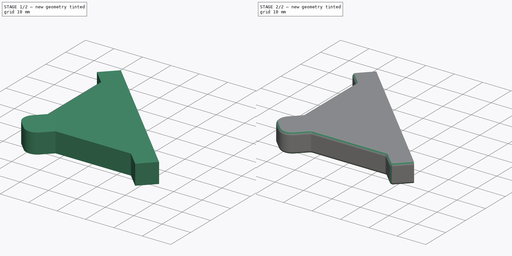
[diagram: build sequence overview — one tinted view per stage of 2, left to right]
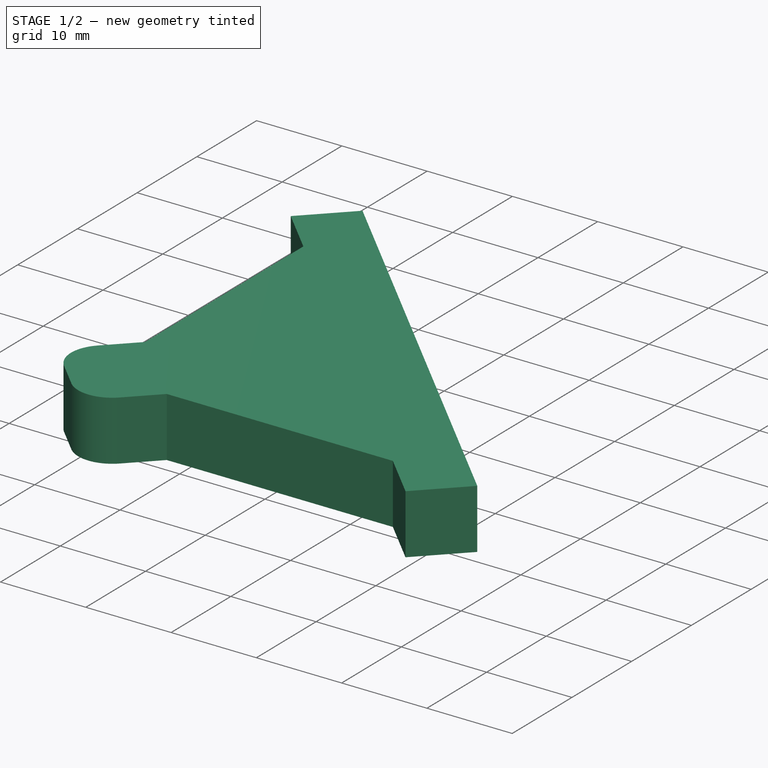
[diagram: stage 1 of 2 — iso view after this stage's code; geometry added in this stage tinted green]
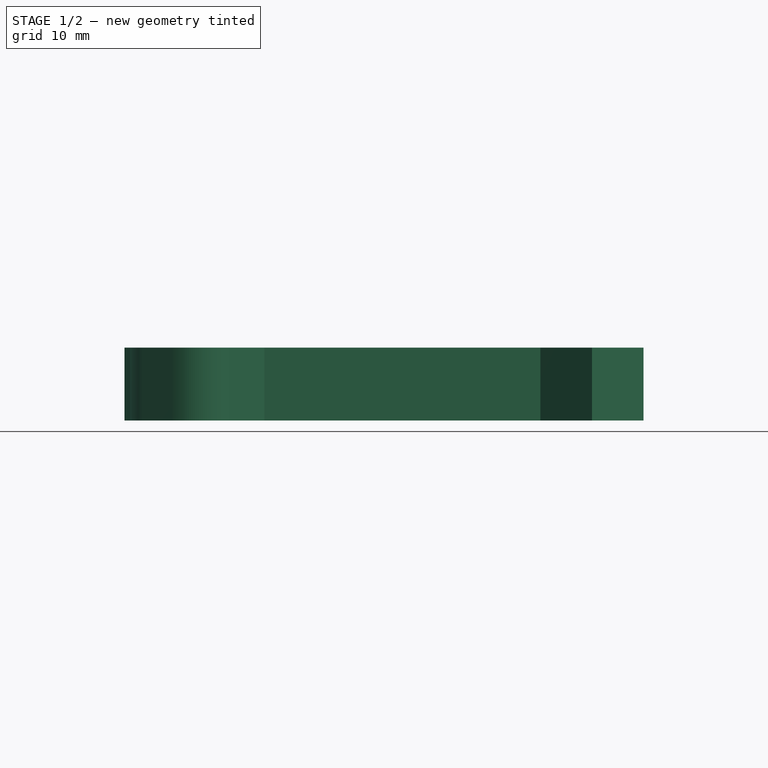
[diagram: stage 1 of 2 — front view after this stage's code; geometry added in this stage tinted green]
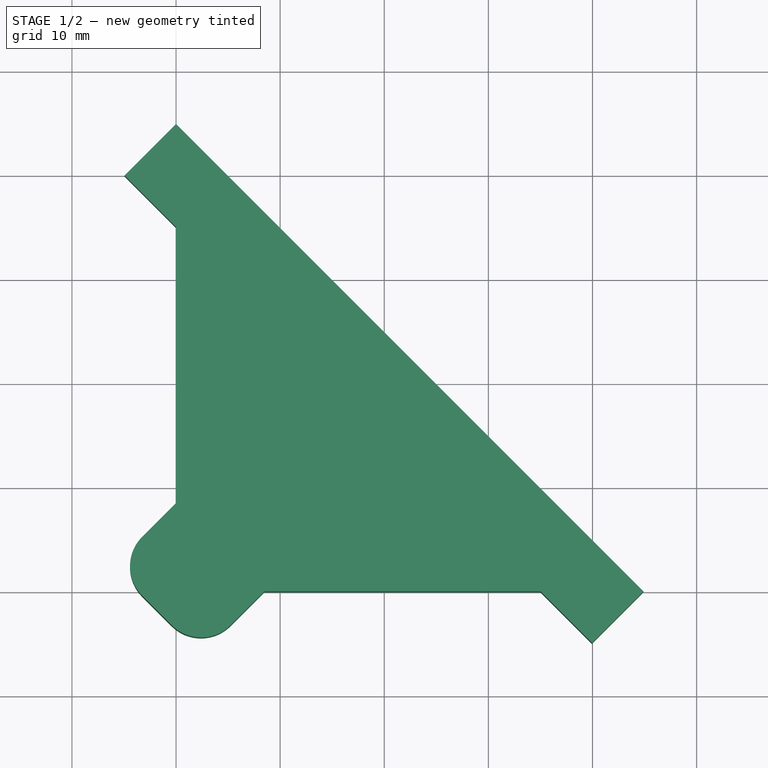
[diagram: stage 1 of 2 — top view after this stage's code; geometry added in this stage tinted green]
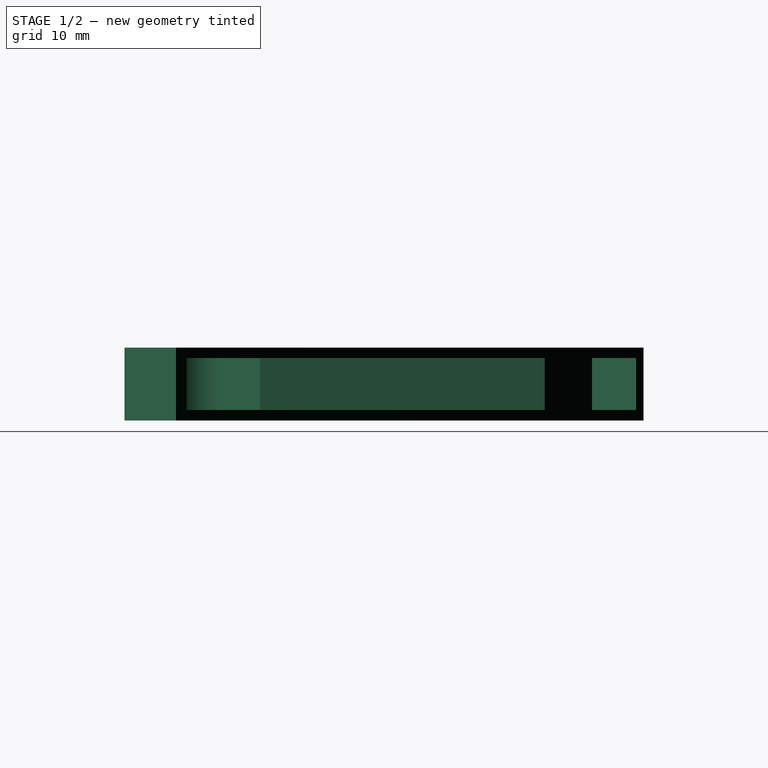
[diagram: stage 1 of 2 — right view after this stage's code; geometry added in this stage tinted green]
FCSTD DOCUMENT  (FreeCAD 0.20R29410 (Git))
Label: GlassSheetEdgeProtector
License: All rights reserved
LicenseURL: http://en.wikipedia.org/wiki/All_rights_reserved
objects: Sketcher::SketchObject×3, PartDesign::Pad×1, PartDesign::Pocket×1, PartDesign::Fillet×1, PartDesign::Body×1
note: 10 computed .brp shape members not serialized (recipe doc carries the construction recipe); baked Part::Feature solids carry a one-line shape summary decoded from their .brp

FEATURE [Sketcher::SketchObject] Sketch
  FullyConstrained = true
  MapMode = 5
  Support = -> [XY_Plane]
  sketch-geometry (17):
    g0: LineSegment StartX=8.38e-14 StartY=35 StartZ=0 EndX=35 EndY=4.26e-14 EndZ=0
    g1: LineSegment StartX=8.38e-14 StartY=35 StartZ=0 EndX=-4.94975 EndY=39.9497 EndZ=0
    g2: LineSegment StartX=35 StartY=4.26e-14 StartZ=0 EndX=39.9497 EndY=-4.94975 EndZ=0
    g3: LineSegment StartX=-4.94975 StartY=39.9497 StartZ=0 EndX=1.03046e-11 EndY=44.8995 EndZ=0
    g4: LineSegment StartX=39.9497 StartY=-4.94975 StartZ=0 EndX=44.8995 EndY=-8.6615e-12 EndZ=0
    g5: LineSegment StartX=1.03043e-11 StartY=44.8995 StartZ=0 EndX=44.8995 EndY=-8.6615e-12 EndZ=0
    g6: LineSegment StartX=8.38e-14 StartY=8.48528 StartZ=0 EndX=-3.25269 EndY=5.23259 EndZ=0
    g7: LineSegment StartX=8.48528 StartY=4.26e-14 StartZ=0 EndX=5.23259 EndY=-3.25269 EndZ=0
    g8: LineSegment StartX=8.38e-14 StartY=4.26e-14 StartZ=0 EndX=8.48528 EndY=4.26e-14 EndZ=0
    g9: LineSegment StartX=8.48528 StartY=4.26e-14 StartZ=0 EndX=35 EndY=4.26e-14 EndZ=0
    g10: LineSegment StartX=8.38e-14 StartY=4.26e-14 StartZ=0 EndX=8.38e-14 EndY=8.48528 EndZ=0
    g11: LineSegment StartX=8.38e-14 StartY=8.48528 StartZ=0 EndX=8.38e-14 EndY=35 EndZ=0
    g12: LineSegment StartX=-3.25269 StartY=-0.424264 StartZ=0 EndX=-0.424264 EndY=-3.25269 EndZ=0
    g13: ArcOfCircle CenterX=-0.424264 CenterY=2.40416 CenterZ=0 NormalX=0 NormalY=0 NormalZ=1 AngleXU=0 Radius=4 StartAngle=2.35619 EndAngle=3.92699
    g14: ArcOfCircle CenterX=2.40416 CenterY=-0.424264 CenterZ=0 NormalX=0 NormalY=0 NormalZ=1 AngleXU=0 Radius=4 StartAngle=3.92699 EndAngle=5.49779
    g15: LineSegment StartX=8.38e-14 StartY=8.48528 StartZ=0 EndX=8.48528 EndY=4.26e-14 EndZ=0
    g16: LineSegment StartX=2.82843 StartY=5.65685 StartZ=0 EndX=-3.25269 EndY=-0.424264 EndZ=0
  constraints (45):
    c: Coincident(g10,g-1)
    c: Coincident(g8,g10)
    c: DistanceY(g10,g11) = 35
    c: Coincident(g0,g11)
    c: Coincident(g0,g9)
    c: Coincident(g1,g11)
    c: Coincident(g2,g9)
    c: Parallel(g0,g1)
    c: Distance(g1) = 7
    c: Equal(g1,g2)
    c: Parallel(g0,g2)
    c: Coincident(g3,g1)
    c: Coincident(g4,g2)
    c: Perpendicular(g2,g4)
    c: Perpendicular(g1,g3)
    c: Equal(g1,g3)
    c: Equal(g4,g2)
    c: Coincident(g5,g3)
    c: Coincident(g5,g4)
    c: Parallel(g3,g6)
    c: Parallel(g4,g7)
    c: Coincident(g8,g9)
    c: Horizontal(g8)
    c: Horizontal(g9)
    c: Coincident(g10,g11)
    c: Vertical(g10)
    c: Vertical(g11)
    c: Coincident(g11,g6)
    c: Coincident(g7,g8)
    c: Equal(g9,g11)
    c: Equal(g10,g8)
    c: Distance(g6,g7) = 12
    c: Equal(g7,g6)
    c: Tangent(g6,g13) = -1.5708
    c: Tangent(g12,g13) = -1.5708
    c: Tangent(g7,g14) = 1.5708
    c: Tangent(g12,g14) = -1.5708
    c: Coincident(g15,g6)
    c: Coincident(g15,g7)
    c: Equal(g13,g14)
    c: PointOnObject(g16,g15)
    c: Distance(g16,g16) = 8.6
    c: Coincident(g16,g12)
    c: Perpendicular(g15,g16)
    c: Radius(g13) = 4
FEATURE [Sketcher::SketchObject] Sketch001
  ExternalGeometry = -> [Sketch]
  FullyConstrained = true
  MapMode = 5
  Support = -> [XY_Plane]
  sketch-geometry (12):
    g0: ArcOfCircle CenterX=-0.424264 CenterY=2.40416 CenterZ=0 NormalX=0 NormalY=0 NormalZ=1 AngleXU=0 Radius=4 StartAngle=2.35619 EndAngle=3.92699
    g1: ArcOfCircle CenterX=2.40416 CenterY=-0.424264 CenterZ=0 NormalX=0 NormalY=0 NormalZ=1 AngleXU=0 Radius=4 StartAngle=3.92699 EndAngle=5.49779
    g2: LineSegment StartX=-3.25269 StartY=5.23259 StartZ=0 EndX=0 EndY=8.48528 EndZ=0
    g3: LineSegment StartX=0 StartY=8.48528 StartZ=0 EndX=3.2486e-12 EndY=35 EndZ=0
    g4: LineSegment StartX=3.2486e-12 StartY=35 StartZ=0 EndX=-4.94975 EndY=39.9497 EndZ=0
    g5: LineSegment StartX=-4.94975 StartY=39.9497 StartZ=0 EndX=1.7689e-11 EndY=44.8995 EndZ=0
    g6: LineSegment StartX=1.7689e-11 StartY=44.8995 StartZ=0 EndX=44.8995 EndY=-7.6099e-12 EndZ=0
    g7: LineSegment StartX=44.8995 StartY=-7.6099e-12 StartZ=0 EndX=39.9497 EndY=-4.94975 EndZ=0
    g8: LineSegment StartX=39.9497 StartY=-4.94975 StartZ=0 EndX=35 EndY=5.3175e-12 EndZ=0
    g9: LineSegment StartX=35 StartY=5.3175e-12 StartZ=0 EndX=8.48528 EndY=5.3171e-12 EndZ=0
    g10: LineSegment StartX=8.48528 StartY=5.3171e-12 StartZ=0 EndX=5.23259 EndY=-3.25269 EndZ=0
    g11: LineSegment StartX=-3.25269 StartY=-0.424264 StartZ=0 EndX=-0.424264 EndY=-3.25269 EndZ=0
  constraints (26):
    c: Coincident(g0,g-3)
    c: Coincident(g0,g-3)
    c: Coincident(g1,g-4)
    c: Coincident(g1,g-4)
    c: Equal(g-4,g1)
    c: Equal(g-3,g0)
    c: Coincident(g2,g0)
    c: Coincident(g2,g-6)
    c: Coincident(g2,g3)
    c: Coincident(g3,g-6)
    c: Coincident(g3,g4)
    c: Coincident(g4,g-7)
    c: Coincident(g4,g5)
    c: Coincident(g5,g-7)
    c: Coincident(g5,g6)
    c: Coincident(g6,g-8)
    c: Coincident(g6,g7)
    c: Coincident(g7,g-8)
    c: Coincident(g7,g8)
    c: Coincident(g8,g-5)
    c: Coincident(g8,g9)
    c: Coincident(g9,g-5)
    c: Coincident(g9,g10)
    c: Coincident(g10,g1)
    c: Coincident(g11,g0)
    c: Coincident(g11,g1)
FEATURE [PartDesign::Pad] Pad
  Direction = (0,0,1)
  Length = 7
  Length2 = 10
  Profile = -> Sketch001
  ReferenceAxis = -> Sketch001 [N_Axis]
  Type = 0
FEATURE [Sketcher::SketchObject] Sketch002
  AttachmentOffset = pos=(0,0,1) rot=(0,0,1;0rad)
  ExternalGeometry = -> [Sketch]
  FullyConstrained = true
  MapMode = 5
  Placement = pos=(0,0,1) rot=(0,0,1;0rad)
  Support = -> [XY_Plane]
  sketch-geometry (30):
    g0: ArcOfCircle CenterX=-0.424264 CenterY=2.40416 CenterZ=0 NormalX=0 NormalY=0 NormalZ=1 AngleXU=0 Radius=3 StartAngle=2.35619 EndAngle=3.92699
    g1: LineSegment StartX=-2.54558 StartY=4.52548 StartZ=0 EndX=1 EndY=8.07107 EndZ=0
    g2: LineSegment StartX=-3.25269 StartY=5.23259 StartZ=0 EndX=-2.54558 EndY=4.52548 EndZ=0
    g3: LineSegment StartX=-1.1164e-12 StartY=8.48528 StartZ=0 EndX=0.707107 EndY=7.77817 EndZ=0
    g4: LineSegment StartX=-3.25269 StartY=-0.424264 StartZ=0 EndX=-2.54558 EndY=0.282842 EndZ=0
    g5: ArcOfCircle CenterX=2.40416 CenterY=-0.424264 CenterZ=0 NormalX=0 NormalY=0 NormalZ=1 AngleXU=0 Radius=3 StartAngle=3.92699 EndAngle=5.49779
    g6: LineSegment StartX=-0.424264 StartY=-3.25269 StartZ=0 EndX=0.282845 EndY=-2.54558 EndZ=0
    g7: LineSegment StartX=4.52548 StartY=-2.54558 StartZ=0 EndX=5.23259 EndY=-3.25269 EndZ=0
    g8: LineSegment StartX=-2.54558 StartY=0.282842 StartZ=0 EndX=0.282845 EndY=-2.54558 EndZ=0
    g9: LineSegment StartX=1 StartY=8.07107 StartZ=0 EndX=1 EndY=35.4142 EndZ=0
    g10: LineSegment StartX=-1.1164e-12 StartY=8.48528 StartZ=0 EndX=1 EndY=8.48528 EndZ=0
    g11: LineSegment StartX=4.52548 StartY=-2.54558 StartZ=0 EndX=8.07107 EndY=1 EndZ=0
    g12: LineSegment StartX=8.07107 StartY=1 StartZ=0 EndX=35.4142 EndY=1 EndZ=0
    g13: LineSegment StartX=5.5365e-12 StartY=35 StartZ=0 EndX=1 EndY=35 EndZ=0
    g14: LineSegment StartX=8.48528 StartY=6.86e-14 StartZ=0 EndX=7.77817 EndY=0.70711 EndZ=0
    g15: LineSegment StartX=8.48528 StartY=6.86e-14 StartZ=0 EndX=8.48528 EndY=1 EndZ=0
    g16: LineSegment StartX=35 StartY=1.55e-14 StartZ=0 EndX=35 EndY=1 EndZ=0
    g17: LineSegment StartX=1 StartY=35.4142 StartZ=0 EndX=-3.53553 EndY=39.9497 EndZ=0
    g18: LineSegment StartX=-3.53553 StartY=39.9497 StartZ=0 EndX=0.707107 EndY=44.1924 EndZ=0
    g19: LineSegment StartX=0.707107 StartY=44.1924 StartZ=0 EndX=44.1924 EndY=0.70711 EndZ=0
    g20: LineSegment StartX=44.1924 StartY=0.70711 StartZ=0 EndX=39.9497 EndY=-3.53553 EndZ=0
    g21: LineSegment StartX=35.4142 StartY=1 StartZ=0 EndX=39.9497 EndY=-3.53553 EndZ=0
    g22: LineSegment StartX=35 StartY=1.55e-14 StartZ=0 EndX=35.7071 EndY=0.70711 EndZ=0
    g23: LineSegment StartX=-3.53553 StartY=39.9497 StartZ=0 EndX=-4.24264 EndY=39.2426 EndZ=0
    g24: LineSegment StartX=-3.53553 StartY=39.9497 StartZ=0 EndX=-4.24264 EndY=40.6569 EndZ=0
    g25: LineSegment StartX=0.707107 StartY=44.1924 StartZ=0 EndX=1.06816e-11 EndY=44.8995 EndZ=0
    g26: LineSegment StartX=5.5365e-12 StartY=35 StartZ=0 EndX=0.707107 EndY=35.7071 EndZ=0
    g27: LineSegment StartX=39.9497 StartY=-3.53553 StartZ=0 EndX=39.2426 EndY=-4.24264 EndZ=0
    g28: LineSegment StartX=39.9497 StartY=-3.53553 StartZ=0 EndX=40.6569 EndY=-4.24264 EndZ=0
    g29: LineSegment StartX=44.1924 StartY=0.70711 StartZ=0 EndX=44.8995 EndY=-9.3784e-12 EndZ=0
  constraints (82):
    c: Coincident(g0,g-3)
    c: Tangent(g0,g1) = 1.5708
    c: Coincident(g2,g0)
    c: PointOnObject(g3,g1)
    c: Perpendicular(g3,g1)
    c: Equal(g2,g3)
    c: Coincident(g4,g-3)
    c: Coincident(g4,g0)
    c: Equal(g2,g4)
    c: Coincident(g5,g-4)
    c: Coincident(g6,g-4)
    c: Coincident(g6,g5)
    c: Coincident(g7,g5)
    c: Coincident(g7,g-4)
    c: Tangent(g8,g0) = -1.5708
    c: Tangent(g8,g5) = -1.5708
    c: Equal(g6,g7)
    c: Coincident(g2,g-3)
    c: Coincident(g9,g1)
    c: Coincident(g10,g3)
    c: PointOnObject(g10,g9)
    c: Horizontal(g10)
    c: Equal(g3,g10)
    c: Coincident(g3,g-5)
    c: Coincident(g12,g11)
    c: Tangent(g11,g5) = -1.5708
    c: DistanceX(g-5,g9) = 1
    c: Coincident(g13,g-5)
    c: PointOnObject(g13,g9)
    c: Horizontal(g13)
    c: Equal(g10,g13)
    c: Coincident(g14,g-6)
    c: PointOnObject(g14,g11)
    c: Coincident(g15,g14)
    c: PointOnObject(g15,g12)
    c: Vertical(g15)
    c: Perpendicular(g11,g14)
    c: Coincident(g16,g-6)
    c: PointOnObject(g16,g12)
    c: Vertical(g16)
    c: Equal(g14,g15)
    c: Equal(g15,g16)
    c: Coincident(g9,g17)
    c: Coincident(g17,g18)
    c: Coincident(g18,g19)
    c: Coincident(g21,g12)
    c: Coincident(g21,g20)
    c: Coincident(g20,g19)
    c: Coincident(g22,g16)
    c: PointOnObject(g22,g21)
    c: Perpendicular(g21,g22)
    c: Equal(g22,g16)
    c: Coincident(g23,g17)
    c: PointOnObject(g23,g-8)
    c: Coincident(g24,g17)
    c: PointOnObject(g24,g-7)
    c: Coincident(g25,g18)
    c: PointOnObject(g25,g-7)
    c: Perpendicular(g17,g23)
    c: Perpendicular(g18,g24)
    c: Perpendicular(g18,g25)
    c: Coincident(g26,g13)
    c: PointOnObject(g26,g17)
    c: Perpendicular(g17,g26)
    c: Equal(g13,g26)
    c: Equal(g26,g23)
    c: Equal(g23,g24)
    c: Equal(g24,g25)
    c: Coincident(g27,g20)
    c: PointOnObject(g27,g-10)
    c: Coincident(g28,g20)
    c: PointOnObject(g28,g-11)
    c: Coincident(g29,g19)
    c: PointOnObject(g29,g-11)
    c: Perpendicular(g20,g29)
    c: Perpendicular(g20,g28)
    c: Perpendicular(g21,g27)
    c: Equal(g22,g27)
    c: Equal(g27,g28)
    c: Equal(g28,g29)
    c: PointOnObject(g19,g-9)
    c: PointOnObject(g18,g-9)
FEATURE [PartDesign::Pocket] Pocket
  BaseFeature = -> Pad
  Direction = (0,0,-1)
  Length = 5
  Length2 = 5
  Profile = -> Sketch002
  ReferenceAxis = -> Sketch002 [N_Axis]
  Reversed = true
  Type = 0
  expr: Length = <<Pad>>.Length - 2 * <<Sketch002>>.AttachmentOffset.Base.z
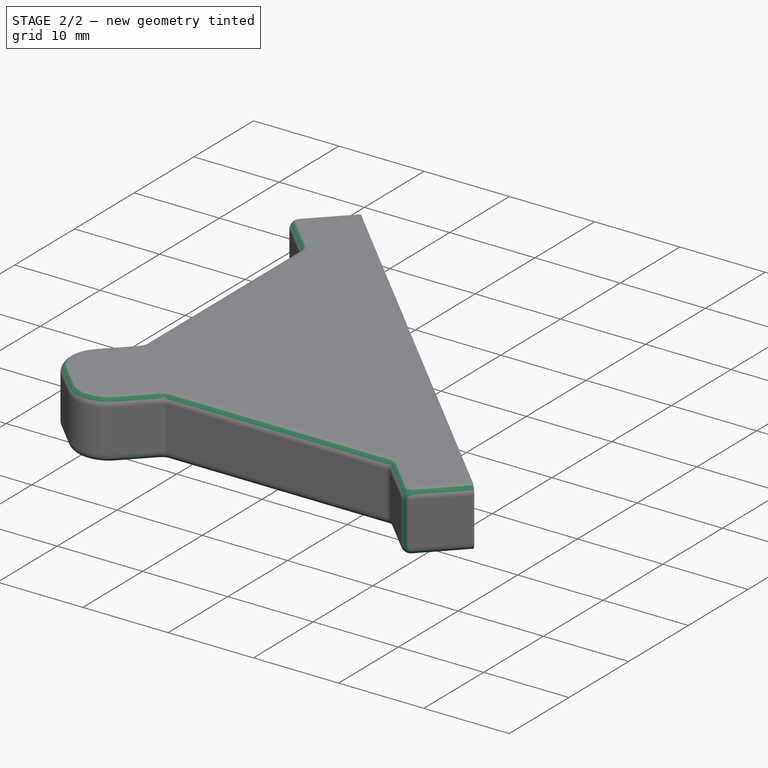
[diagram: stage 2 of 2 — iso view after this stage's code; geometry added in this stage tinted green]
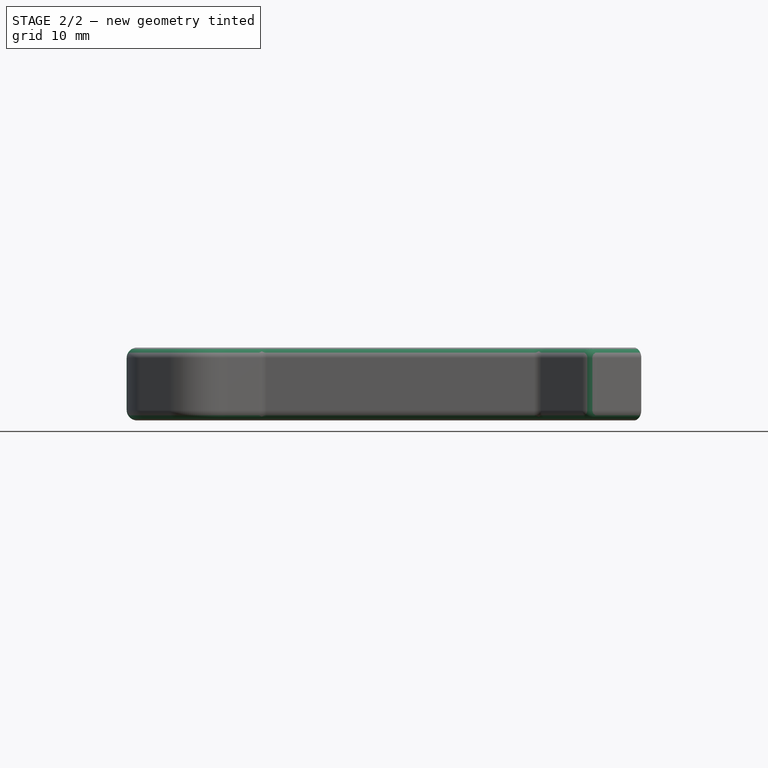
[diagram: stage 2 of 2 — front view after this stage's code; geometry added in this stage tinted green]
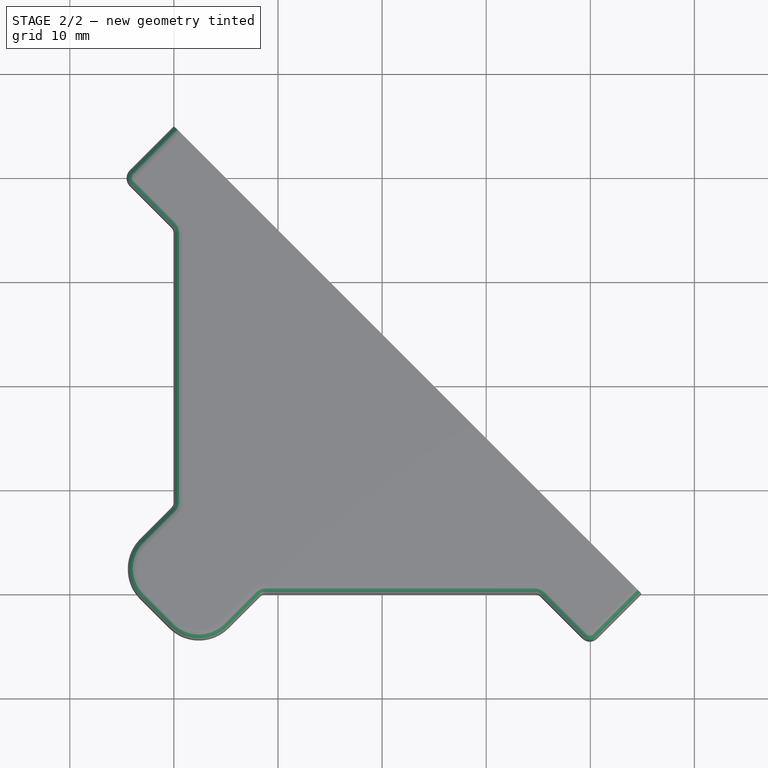
[diagram: stage 2 of 2 — top view after this stage's code; geometry added in this stage tinted green]
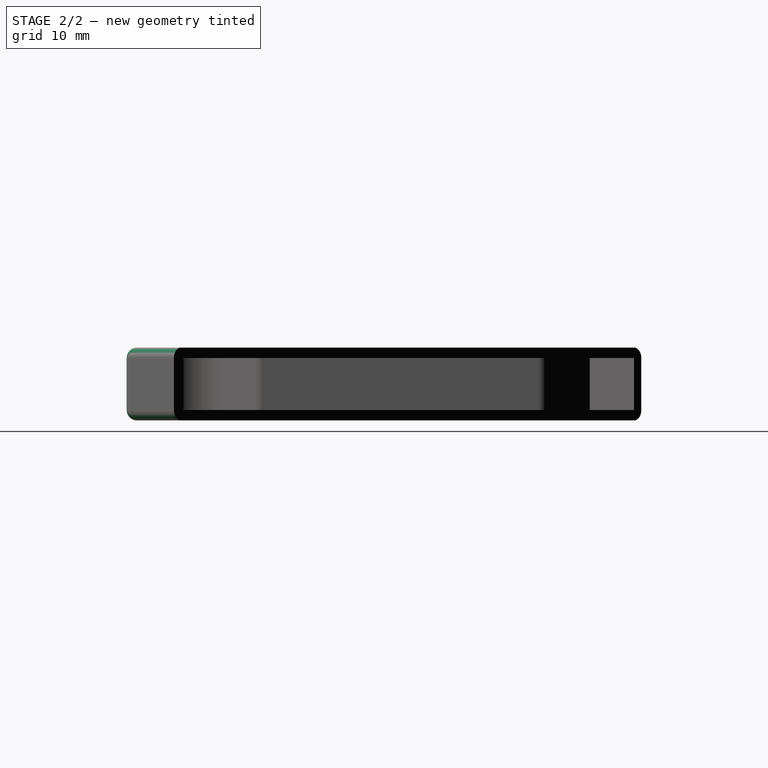
[diagram: stage 2 of 2 — right view after this stage's code; geometry added in this stage tinted green]
FEATURE [PartDesign::Fillet] Fillet
  Base = -> Pocket [Edge25,Edge16,Edge27,Edge18,Face11,Face10,Face7,Face3,Face1,Face2,Face6,Face8,Face9,Edge72,Edge71,Edge70,Edge66]
  BaseFeature = -> Pocket
  Radius = 1
  SupportTransform = false
  UseAllEdges = false
FEATURE [PartDesign::Body] Body
  Group = -> [Sketch,Sketch001,Pad,Sketch002,Pocket,Fillet]
  Origin = -> Origin
  Tip = -> Fillet
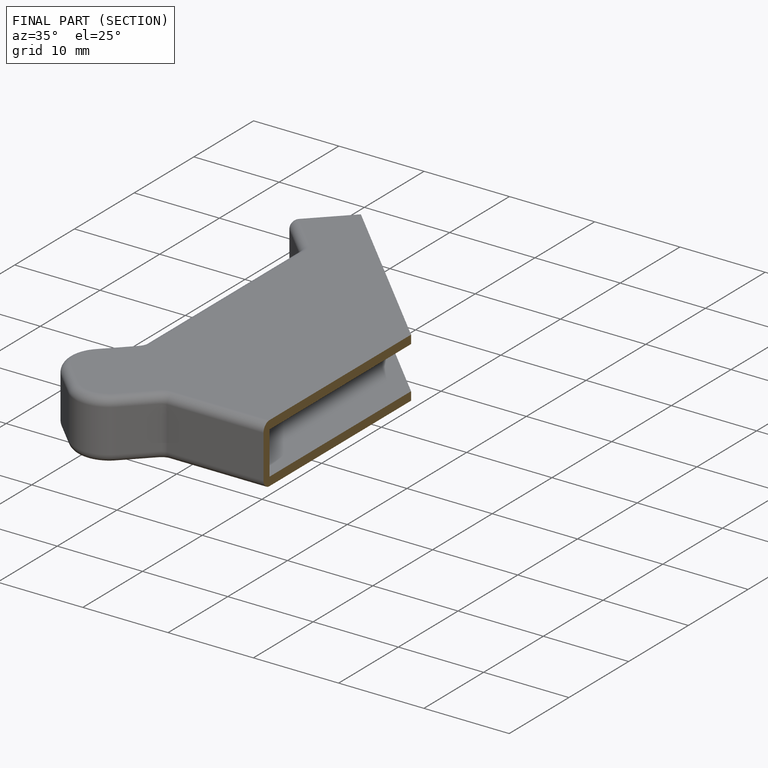
[diagram: finished part — half-section view (interior)]
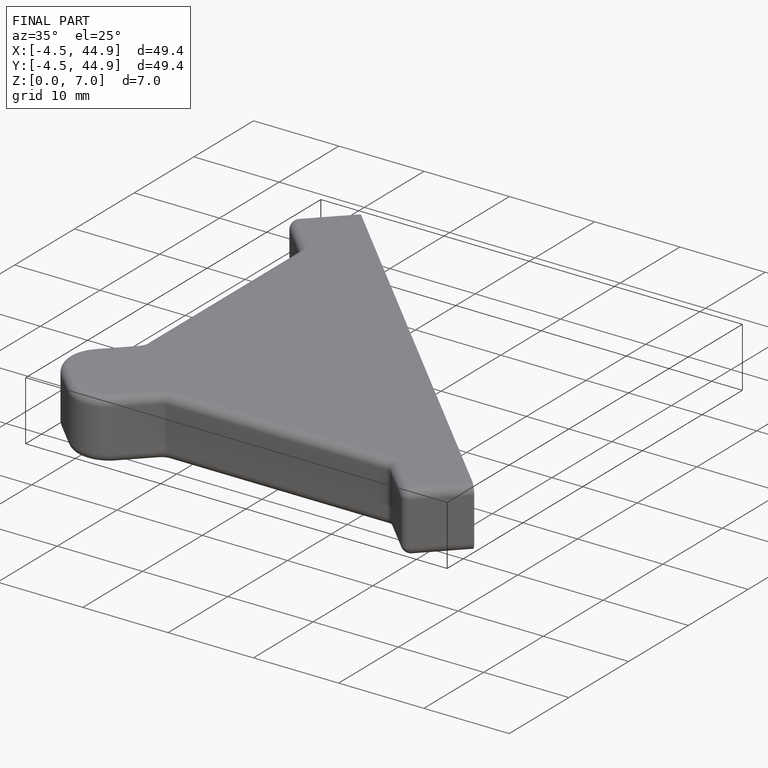
[diagram: finished part — iso view with bounding-box wireframe]
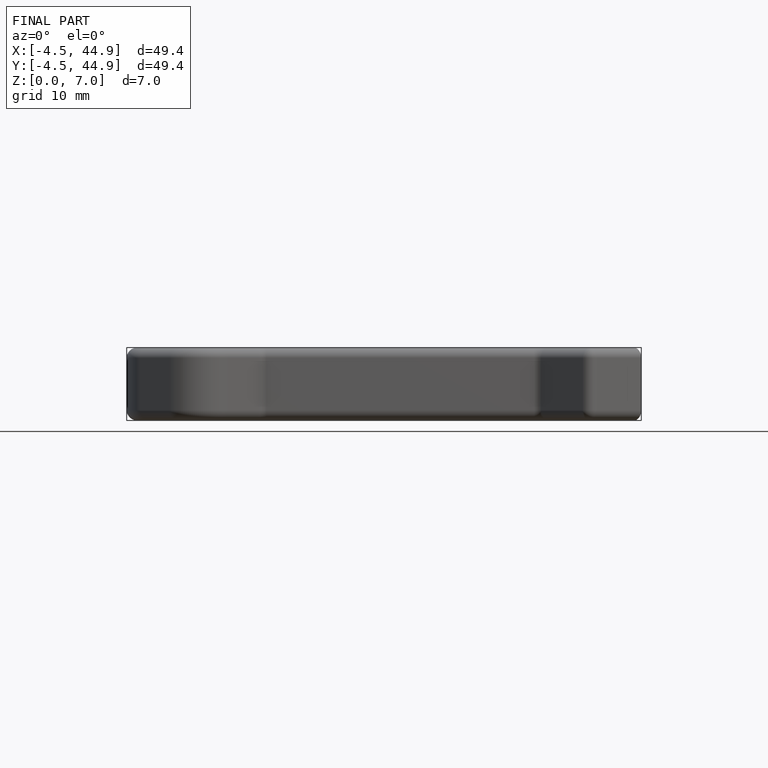
[diagram: finished part — front view with bounding-box wireframe]
